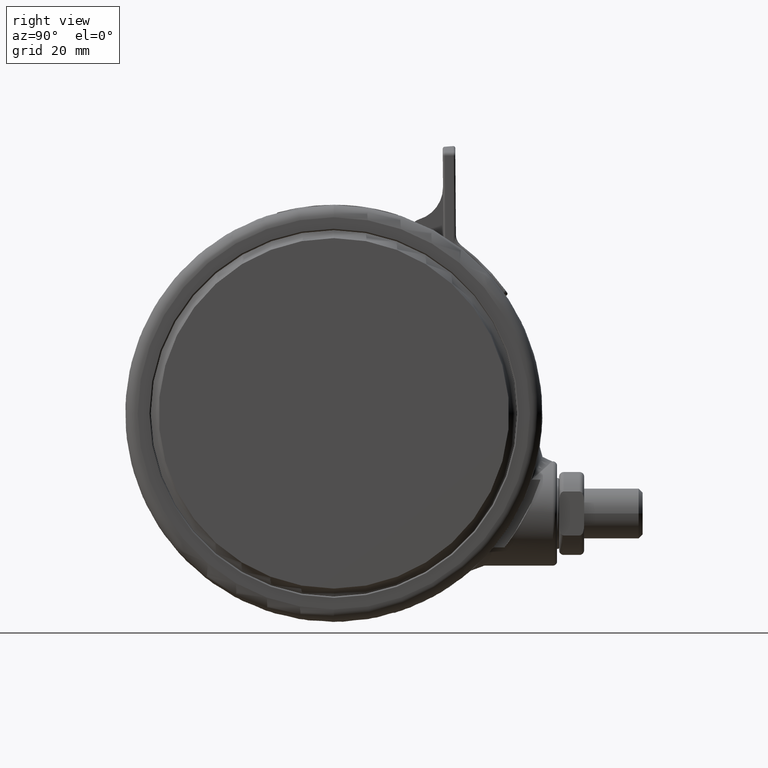
[diagram: clean part render]
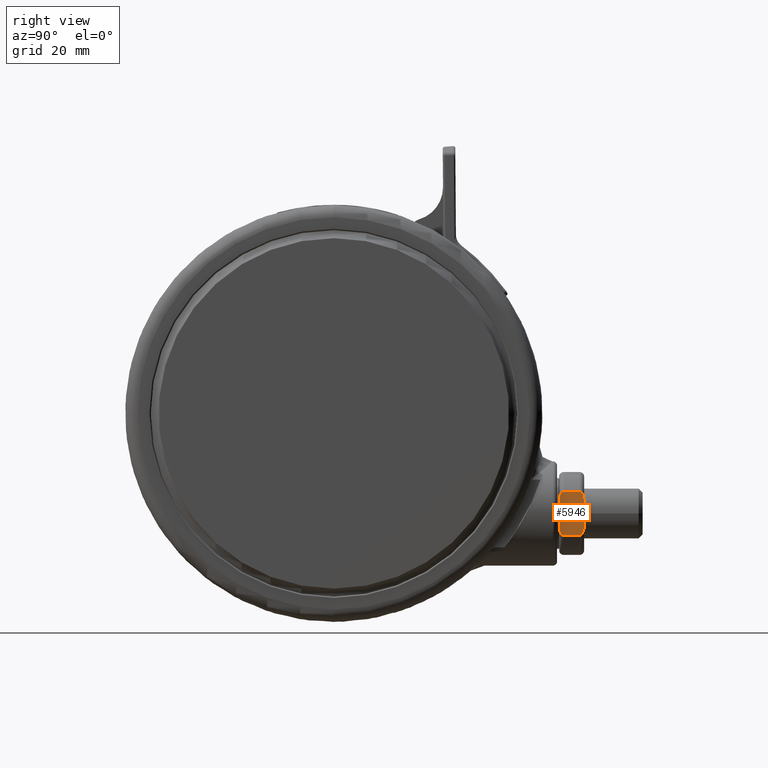
[diagram: same view with one face highlighted and labeled with its STEP entity id]
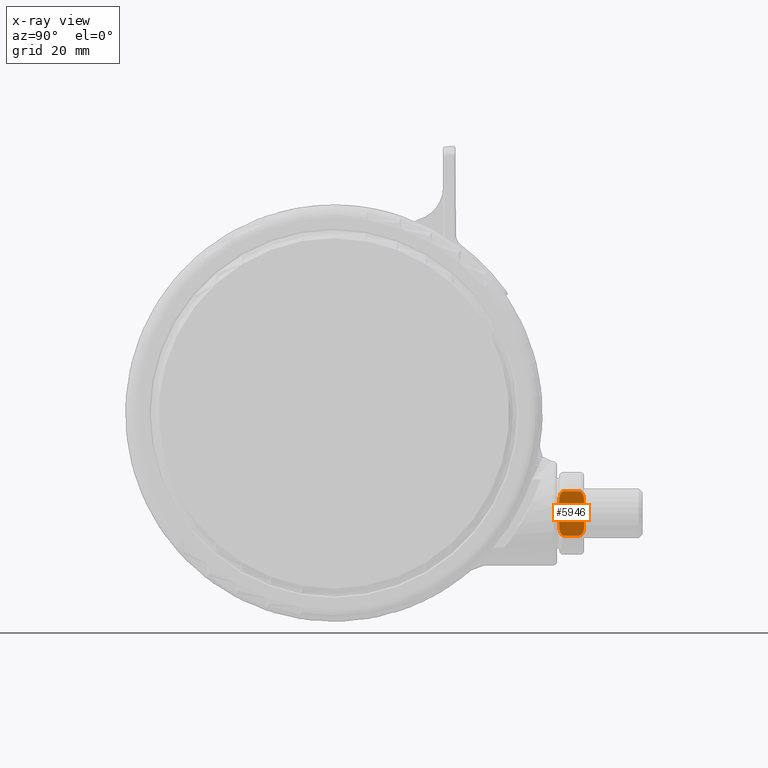
[diagram: x-ray of the same camera — body ghosted, the highlighted face saturated]
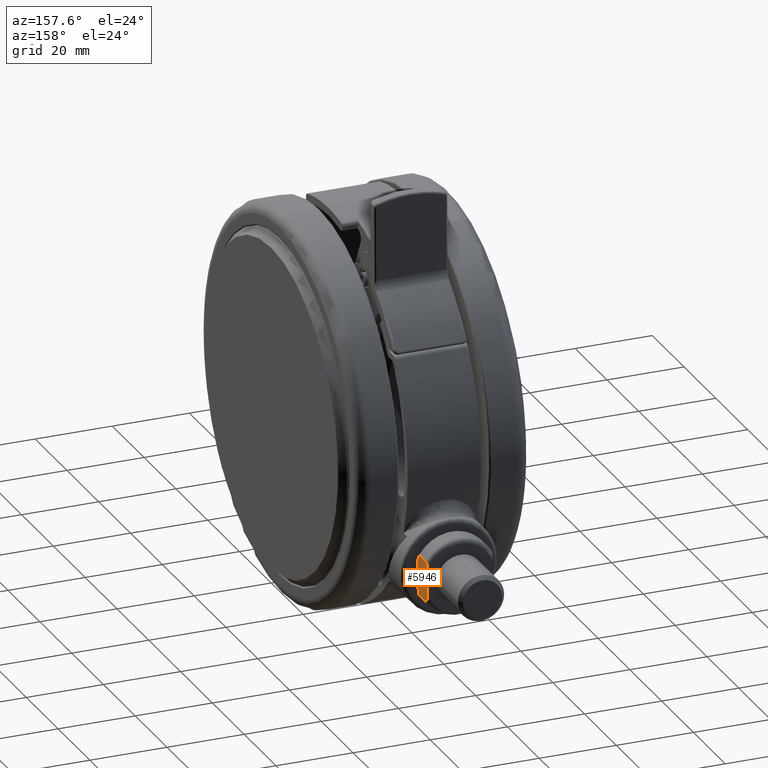
[diagram: same view with one face highlighted and labeled with its STEP entity id]
A machine part, right view. The second image highlights one B-rep face of the part: STEP entity #5946.
The next image is the same camera in x-ray: the body ghosted, the highlighted face saturated — about 0% of this face is hidden behind the body in this view.
A second angle (auxiliary view) of the same face is appended — the face is thin or edge-on in the first view.
In plain terms, the highlighted planar face has unit normal (-1, -0, 0).
Its self-contained STEP definition (entity closure, byte-faithful):
#923 = DIRECTION ( 'NONE',  ( -2.360897160001558300E-016, 1.000000000000000000, -6.688773330916236600E-017 ) ) ;
#1336 = EDGE_CURVE ( 'NONE', #18415, #29788, #29512, .T. ) ;
#1491 = CARTESIAN_POINT ( 'NONE',  ( -19.58763963388774700, -54.22932157099575800, -15.79999999999994600 ) ) ;
#1647 = CARTESIAN_POINT ( 'NONE',  ( -29.22129987499188900, -54.84204673414392100, -15.79999999999995600 ) ) ;
#1919 = CARTESIAN_POINT ( 'NONE',  ( -29.26782687642636200, -59.99999999999999300, -15.79999999999994600 ) ) ;
#2047 = CARTESIAN_POINT ( 'NONE',  ( -18.77870012500811500, -59.15795326585606500, -15.79999999999994600 ) ) ;
#2219 = ORIENTED_EDGE ( 'NONE', *, *, #33597, .F. ) ;
#2479 = CARTESIAN_POINT ( 'NONE',  ( -27.91544957079376100, -59.90920059051450200, -15.79999999999994600 ) ) ;
#2518 = EDGE_CURVE ( 'NONE', #45757, #15402, #30003, .T. ) ;
#2535 = VERTEX_POINT ( 'NONE', #32571 ) ;
#2939 = ORIENTED_EDGE ( 'NONE', *, *, #3970, .T. ) ;
#2992 = EDGE_CURVE ( 'NONE', #5422, #29788, #34218, .T. ) ;
#3858 = EDGE_LOOP ( 'NONE', ( #2219, #2939, #47843, #28883, #35927, #8379, #15539, #32148 ) ) ;
#3970 = EDGE_CURVE ( 'NONE', #44727, #45757, #21810, .T. ) ;
#4576 = CARTESIAN_POINT ( 'NONE',  ( -18.73217312357362000, -59.99999999999999300, -15.79999999999994600 ) ) ;
#5285 = CARTESIAN_POINT ( 'NONE',  ( -27.15268964969410300, -54.00770887567933400, -15.79999999999994900 ) ) ;
#5298 = CARTESIAN_POINT ( 'NONE',  ( -20.08455042920623200, -54.09079940948552000, -15.79999999999994900 ) ) ;
#5422 = VERTEX_POINT ( 'NONE', #27043 ) ;
#5445 = CARTESIAN_POINT ( 'NONE',  ( -29.26782687642636600, -55.09999999999998700, -15.79999999999994600 ) ) ;
#5847 = CARTESIAN_POINT ( 'NONE',  ( -18.73217312357362400, -58.89999999999998400, -15.79999999999994600 ) ) ;
#5946 = ADVANCED_FACE ( 'NONE', ( #46792 ), #12170, .F. ) ;
#6292 = CARTESIAN_POINT ( 'NONE',  ( -27.15303954897143900, -59.99224030502896500, -15.79999999999994600 ) ) ;
#7731 = EDGE_CURVE ( 'NONE', #15402, #2535, #40825, .T. ) ;
#8230 = CARTESIAN_POINT ( 'NONE',  ( -18.73217312357362000, -59.99999999999999300, -15.79999999999994600 ) ) ;
#8379 = ORIENTED_EDGE ( 'NONE', *, *, #2992, .T. ) ;
#8956 = CARTESIAN_POINT ( 'NONE',  ( -18.73217312357362400, -55.09999999999998700, -15.79999999999994600 ) ) ;
#9116 = CARTESIAN_POINT ( 'NONE',  ( -20.84696045102855400, -54.00775969497101400, -15.79999999999994600 ) ) ;
#9457 = VECTOR ( 'NONE', #47088, 1000.000000000000000 ) ;
#9723 = VECTOR ( 'NONE', #14789, 1000.000000000000000 ) ;
#10088 = CARTESIAN_POINT ( 'NONE',  ( -26.63818119165457400, -59.99999999999999300, -15.79999999999994600 ) ) ;
#11103 = VECTOR ( 'NONE', #13287, 1000.000000000000000 ) ;
#12010 = DIRECTION ( 'NONE',  ( -1.000000000000000000, -2.360897160001558300E-016, -1.012011884991536800E-016 ) ) ;
#12160 = LINE ( 'NONE', #8230, #39875 ) ;
#12170 = PLANE ( 'NONE',  #20117 ) ;
#12907 = CARTESIAN_POINT ( 'NONE',  ( -26.63818119165457400, -53.99999999999999300, -15.79999999999994600 ) ) ;
#12921 = CARTESIAN_POINT ( 'NONE',  ( -21.36181880834541500, -53.99999999999999300, -15.79999999999994600 ) ) ;
#13287 = DIRECTION ( 'NONE',  ( -2.360897160001558300E-016, 1.000000000000000000, -6.688773330916236600E-017 ) ) ;
#13300 = CARTESIAN_POINT ( 'NONE',  ( -21.36181880834541100, -59.99999999999999300, -15.79999999999994600 ) ) ;
#13724 = CARTESIAN_POINT ( 'NONE',  ( -29.22161234199457200, -59.15760131995571000, -15.79999999999994600 ) ) ;
#14789 = DIRECTION ( 'NONE',  ( -1.000000000000000000, -2.360897160001558300E-016, -1.012011884991536800E-016 ) ) ;
#15402 = VERTEX_POINT ( 'NONE', #45663 ) ;
#15539 = ORIENTED_EDGE ( 'NONE', *, *, #1336, .F. ) ;
#16488 = CARTESIAN_POINT ( 'NONE',  ( -26.89575272413466300, -54.00000000000000000, -15.79999999999994900 ) ) ;
#16506 = CARTESIAN_POINT ( 'NONE',  ( -18.77838765800542500, -54.84239868004425500, -15.79999999999994600 ) ) ;
#16650 = CARTESIAN_POINT ( 'NONE',  ( -27.92035952818570600, -54.09165276029156600, -15.79999999999994900 ) ) ;
#16882 = CARTESIAN_POINT ( 'NONE',  ( -26.63818119165457400, -59.99999999999999300, -15.79999999999994600 ) ) ;
#17024 = CARTESIAN_POINT ( 'NONE',  ( -20.07964047181428700, -59.90834723970842600, -15.79999999999994600 ) ) ;
#17292 = CARTESIAN_POINT ( 'NONE',  ( -29.26782687642636200, -58.89999999999999100, -15.79999999999994600 ) ) ;
#17461 = CARTESIAN_POINT ( 'NONE',  ( -28.97791877551098900, -59.46215408130817100, -15.79999999999994600 ) ) ;
#18415 = VERTEX_POINT ( 'NONE', #27746 ) ;
#20117 = AXIS2_PLACEMENT_3D ( 'NONE', #4576, #23559, #923 ) ;
#20310 = CARTESIAN_POINT ( 'NONE',  ( -19.02208122448899300, -54.53784591869180800, -15.79999999999994200 ) ) ;
#20464 = CARTESIAN_POINT ( 'NONE',  ( -28.66373596701825800, -54.31740824782826100, -15.79999999999994600 ) ) ;
#20863 = CARTESIAN_POINT ( 'NONE',  ( -19.33626403298172000, -59.68259175217170300, -15.79999999999994200 ) ) ;
#21300 = CARTESIAN_POINT ( 'NONE',  ( -28.65037410100446600, -59.67075768819037100, -15.79999999999994600 ) ) ;
#21810 = B_SPLINE_CURVE_WITH_KNOTS ( 'NONE', 3,
 ( #13300, #35862, #32107, #39645, #17024, #43429, #20863, #47218, #24654, #2047, #28453, #5847 ),
 .UNSPECIFIED., .F., .F.,
 ( 4, 2, 2, 2, 2, 4 ),
 ( 0.0000000000000000000, 0.0007701095471471830800, 0.001540219094294366200, 0.002310328641441549100, 0.002695383415015130300, 0.003080438188588711900 ),
 .UNSPECIFIED. ) ;
#23559 = DIRECTION ( 'NONE',  ( 1.012011884991536500E-016, -6.688773330916234100E-017, -1.000000000000000000 ) ) ;
#24115 = CARTESIAN_POINT ( 'NONE',  ( -19.34962589899552300, -54.32924231180960100, -15.79999999999994200 ) ) ;
#24261 = CARTESIAN_POINT ( 'NONE',  ( -29.07528084068841100, -54.62722577885438100, -15.79999999999994200 ) ) ;
#24654 = CARTESIAN_POINT ( 'NONE',  ( -18.92471915931156400, -59.37277422114556200, -15.79999999999994200 ) ) ;
#25098 = CARTESIAN_POINT ( 'NONE',  ( -28.28820403779655700, -59.81100489386634700, -15.79999999999994600 ) ) ;
#27043 = CARTESIAN_POINT ( 'NONE',  ( -26.63818119165457400, -53.99999999999999300, -15.79999999999994600 ) ) ;
#27746 = CARTESIAN_POINT ( 'NONE',  ( -29.26782687642636200, -58.89999999999999100, -15.79999999999994600 ) ) ;
#27913 = CARTESIAN_POINT ( 'NONE',  ( -19.71179596220343200, -54.18899510613364600, -15.79999999999994200 ) ) ;
#28077 = CARTESIAN_POINT ( 'NONE',  ( -29.26782687642659300, -54.96853252411880000, -15.79999999999994900 ) ) ;
#28305 = VERTEX_POINT ( 'NONE', #16882 ) ;
#28453 = CARTESIAN_POINT ( 'NONE',  ( -18.73217312357340700, -59.03146747588117900, -15.79999999999994900 ) ) ;
#28883 = ORIENTED_EDGE ( 'NONE', *, *, #7731, .T. ) ;
#28896 = CARTESIAN_POINT ( 'NONE',  ( -27.66275141158788400, -59.94652828027162900, -15.79999999999994600 ) ) ;
#28960 = EDGE_CURVE ( 'NONE', #18415, #28305, #39592, .T. ) ;
#29512 = LINE ( 'NONE', #1919, #9457 ) ;
#29783 = LINE ( 'NONE', #44952, #9723 ) ;
#29788 = VERTEX_POINT ( 'NONE', #46859 ) ;
#30003 = LINE ( 'NONE', #39957, #11103 ) ;
#31046 = CARTESIAN_POINT ( 'NONE',  ( -21.36181880834541100, -59.99999999999999300, -15.79999999999994600 ) ) ;
#31553 = CARTESIAN_POINT ( 'NONE',  ( -18.73217312357362700, -54.96849955320067200, -15.79999999999994600 ) ) ;
#31722 = CARTESIAN_POINT ( 'NONE',  ( -20.33724858841211300, -54.05347171972836400, -15.79999999999994900 ) ) ;
#32107 = CARTESIAN_POINT ( 'NONE',  ( -20.84731035030588600, -59.99229112432065100, -15.79999999999994600 ) ) ;
#32148 = ORIENTED_EDGE ( 'NONE', *, *, #28960, .T. ) ;
#32571 = CARTESIAN_POINT ( 'NONE',  ( -21.36181880834541500, -53.99999999999999300, -15.79999999999994600 ) ) ;
#32678 = CARTESIAN_POINT ( 'NONE',  ( -26.89554108775183000, -60.00000000000001400, -15.79999999999994600 ) ) ;
#33597 = EDGE_CURVE ( 'NONE', #44727, #28305, #12160, .T. ) ;
#33912 = CARTESIAN_POINT ( 'NONE',  ( -18.73217312357362400, -58.89999999999998400, -15.79999999999994600 ) ) ;
#34218 = B_SPLINE_CURVE_WITH_KNOTS ( 'NONE', 3,
 ( #12907, #16488, #5285, #39254, #16650, #43046, #20464, #46817, #24261, #1647, #28077, #5445 ),
 .UNSPECIFIED., .F., .F.,
 ( 4, 2, 2, 2, 2, 4 ),
 ( 0.0000000000000000000, 0.0007701095471471790700, 0.001540219094294358100, 0.002310328641441537400, 0.002695383415015120800, 0.003080438188588704100 ),
 .UNSPECIFIED. ) ;
#35495 = CARTESIAN_POINT ( 'NONE',  ( -21.10445891224817300, -54.00000000000000700, -15.79999999999994600 ) ) ;
#35862 = CARTESIAN_POINT ( 'NONE',  ( -21.10424727586533000, -59.99999999999999300, -15.79999999999994600 ) ) ;
#35927 = ORIENTED_EDGE ( 'NONE', *, *, #36890, .T. ) ;
#36286 = CARTESIAN_POINT ( 'NONE',  ( -29.26782687642636900, -59.03150044679934900, -15.79999999999994900 ) ) ;
#36890 = EDGE_CURVE ( 'NONE', #2535, #5422, #29783, .T. ) ;
#39254 = CARTESIAN_POINT ( 'NONE',  ( -27.66405422282291900, -54.05360803441171000, -15.79999999999994600 ) ) ;
#39592 = B_SPLINE_CURVE_WITH_KNOTS ( 'NONE', 3,
 ( #17292, #36286, #13724, #40077, #17461, #43862, #21300, #47658, #25098, #2479, #28896, #6292, #32678, #10088 ),
 .UNSPECIFIED., .F., .F.,
 ( 4, 2, 2, 2, 2, 2, 4 ),
 ( 0.0000000000000000000, 0.0003884959165285341500, 0.0007769918330570683000, 0.001165487749585602300, 0.001553983666114136600, 0.002330975499171219900, 0.003107967332228303600 ),
 .UNSPECIFIED. ) ;
#39645 = CARTESIAN_POINT ( 'NONE',  ( -20.33594577717705600, -59.94639196558825500, -15.79999999999994200 ) ) ;
#39875 = VECTOR ( 'NONE', #12010, 1000.000000000000000 ) ;
#39957 = CARTESIAN_POINT ( 'NONE',  ( -18.73217312357362000, -59.99999999999999300, -15.79999999999994600 ) ) ;
#40077 = CARTESIAN_POINT ( 'NONE',  ( -29.07454047306333300, -59.37375537376416200, -15.79999999999994600 ) ) ;
#40825 = B_SPLINE_CURVE_WITH_KNOTS ( 'NONE', 3,
 ( #8956, #31553, #16506, #42889, #20310, #46665, #24115, #1491, #27913, #5298, #31722, #9116, #35495, #12921 ),
 .UNSPECIFIED., .F., .F.,
 ( 4, 2, 2, 2, 2, 2, 4 ),
 ( 0.0000000000000000000, 0.0003884959165285415800, 0.0007769918330570831600, 0.001165487749585624900, 0.001553983666114166300, 0.002330975499171244200, 0.003107967332228321800 ),
 .UNSPECIFIED. ) ;
#42889 = CARTESIAN_POINT ( 'NONE',  ( -18.92545952693665600, -54.62624462623582400, -15.79999999999994200 ) ) ;
#43046 = CARTESIAN_POINT ( 'NONE',  ( -28.41835256918427900, -54.22373021567116100, -15.79999999999995300 ) ) ;
#43429 = CARTESIAN_POINT ( 'NONE',  ( -19.58164743081570700, -59.77626978432881800, -15.79999999999994600 ) ) ;
#43862 = CARTESIAN_POINT ( 'NONE',  ( -28.76470148028475300, -59.61147475378873400, -15.79999999999994600 ) ) ;
#44727 = VERTEX_POINT ( 'NONE', #31046 ) ;
#44952 = CARTESIAN_POINT ( 'NONE',  ( -18.73217312357362400, -53.99999999999999300, -15.79999999999994600 ) ) ;
#45663 = CARTESIAN_POINT ( 'NONE',  ( -18.73217312357362400, -55.09999999999998700, -15.79999999999994600 ) ) ;
#45757 = VERTEX_POINT ( 'NONE', #33912 ) ;
#46665 = CARTESIAN_POINT ( 'NONE',  ( -19.23529851971523600, -54.38852524621123800, -15.79999999999994600 ) ) ;
#46792 = FACE_OUTER_BOUND ( 'NONE', #3858, .T. ) ;
#46817 = CARTESIAN_POINT ( 'NONE',  ( -28.97741395515430100, -54.53769898767710300, -15.79999999999994600 ) ) ;
#46859 = CARTESIAN_POINT ( 'NONE',  ( -29.26782687642636600, -55.09999999999998700, -15.79999999999994600 ) ) ;
#47088 = DIRECTION ( 'NONE',  ( -2.360897160001558300E-016, 1.000000000000000000, -6.688773330916236600E-017 ) ) ;
#47218 = CARTESIAN_POINT ( 'NONE',  ( -19.02258604484568500, -59.46230101232286100, -15.79999999999994600 ) ) ;
#47658 = CARTESIAN_POINT ( 'NONE',  ( -28.41236036611224200, -59.77067842900422800, -15.79999999999994600 ) ) ;
#47843 = ORIENTED_EDGE ( 'NONE', *, *, #2518, .T. ) ;